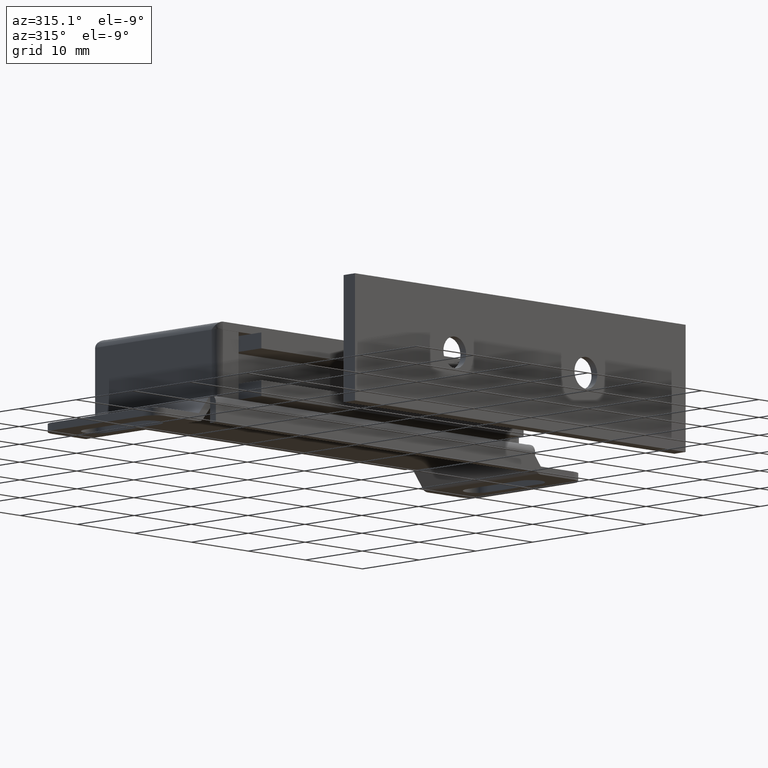
[diagram: clean part render]
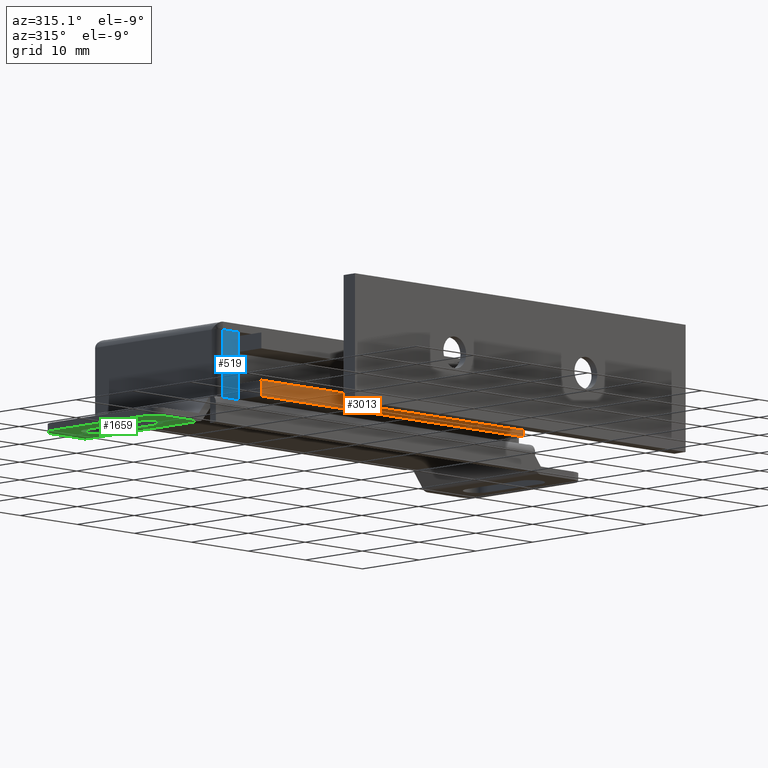
[diagram: same view with three faces highlighted in distinct colors, each labeled with its STEP entity id]
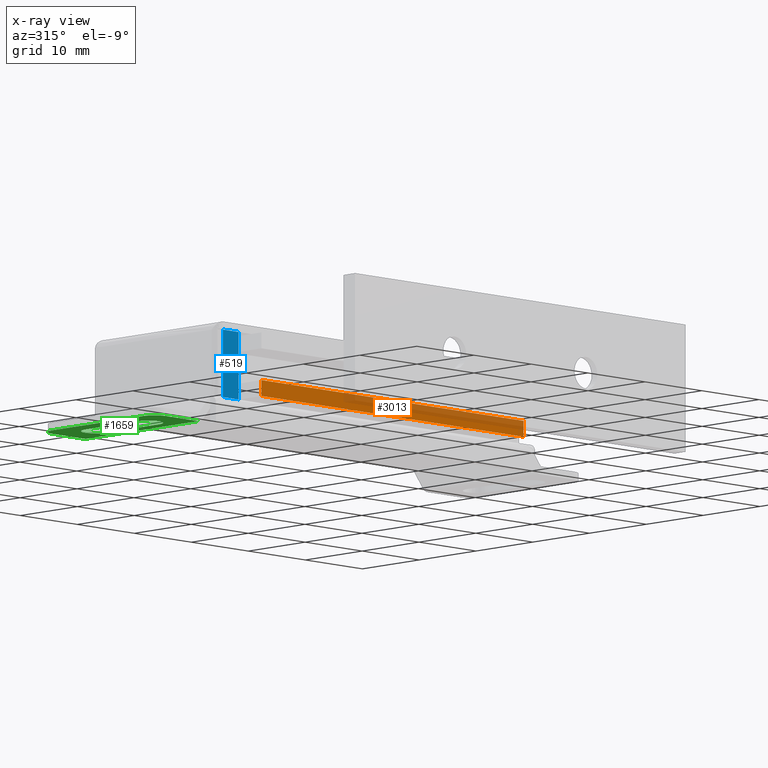
[diagram: x-ray of the same camera — body ghosted, the three highlighted faces saturated]
A machine part, auxiliary view with three faces highlighted in distinct colors.
The next image is the same camera in x-ray (body ghosted, the three faces saturated) — at least one of them is partly hidden behind the body in this view.
Their STEP definitions:

[orange] entity #3013 — the highlighted face is a freeform B-spline surface patch.
#2872=CARTESIAN_POINT('',(-22.999995999999999,-25.500000000000000,5.499999735626181));
#2873=VERTEX_POINT('',#2872);
#2879=CARTESIAN_POINT('',(23.000004000000001,-25.500000000000000,5.499999735626181));
#2880=VERTEX_POINT('',#2879);
#2881=CARTESIAN_POINT('',(23.000004000000001,-25.500000000000000,5.499999735626181));
#2882=CARTESIAN_POINT('',(-22.999995999999999,-25.500000000000000,5.499999735626181));
#2883=QUASI_UNIFORM_CURVE('',1,(#2881,#2882),.UNSPECIFIED.,.F.,.U.);
#2884=EDGE_CURVE('',#2880,#2873,#2883,.T.);
#2928=CARTESIAN_POINT('',(23.000004000000001,-25.500000000000000,3.499999735626220));
#2929=VERTEX_POINT('',#2928);
#2935=CARTESIAN_POINT('',(-22.999995999999999,-25.500000000000000,3.499999735626220));
#2936=VERTEX_POINT('',#2935);
#2937=CARTESIAN_POINT('',(23.000004000000001,-25.500000000000000,3.499999735626220));
#2938=CARTESIAN_POINT('',(-22.999995999999999,-25.500000000000000,3.499999735626220));
#2939=QUASI_UNIFORM_CURVE('',1,(#2937,#2938),.UNSPECIFIED.,.F.,.U.);
#2940=EDGE_CURVE('',#2929,#2936,#2939,.T.);
#2990=CARTESIAN_POINT('',(-22.999995999999999,-25.500000000000000,3.499999735626220));
#2991=CARTESIAN_POINT('',(-22.999995999999999,-25.500000000000000,5.499999735626181));
#2992=QUASI_UNIFORM_CURVE('',1,(#2990,#2991),.UNSPECIFIED.,.F.,.U.);
#2993=EDGE_CURVE('',#2936,#2873,#2992,.T.);
#2998=CARTESIAN_POINT('',(-25.297695910843078,-25.500000000000000,3.400099739502609));
#2999=CARTESIAN_POINT('',(-25.297695910843078,-25.500000000000000,5.599899785393973));
#3000=CARTESIAN_POINT('',(25.297705144659229,-25.500000000000000,3.400099739502609));
#3001=CARTESIAN_POINT('',(25.297705144659229,-25.500000000000000,5.599899785393973));
#3002=B_SPLINE_SURFACE_WITH_KNOTS('',1,1,((#2998,#3000),(#2999,#3001)),.UNSPECIFIED.,.F.,.F.,.U.,(2,2),(2,2),(0.0,2.199800045891363),(0.0,50.595401055502307),.UNSPECIFIED.);
#3003=ORIENTED_EDGE('',*,*,#2884,.T.);
#3004=ORIENTED_EDGE('',*,*,#2993,.F.);
#3005=ORIENTED_EDGE('',*,*,#2940,.F.);
#3006=CARTESIAN_POINT('',(23.000004000000001,-25.500000000000000,3.499999735626220));
#3007=CARTESIAN_POINT('',(23.000004000000001,-25.500000000000000,5.499999735626181));
#3008=QUASI_UNIFORM_CURVE('',1,(#3006,#3007),.UNSPECIFIED.,.F.,.U.);
#3009=EDGE_CURVE('',#2929,#2880,#3008,.T.);
#3010=ORIENTED_EDGE('',*,*,#3009,.T.);
#3011=EDGE_LOOP('',(#3003,#3004,#3005,#3010));
#3012=FACE_OUTER_BOUND('',#3011,.T.);
#3013=ADVANCED_FACE('',(#3012),#3002,.F.);

[blue] entity #519 — the highlighted face is a freeform B-spline surface patch.
#21=CARTESIAN_POINT('',(-25.750004000000001,-21.500000000000000,3.500000000000000));
#22=VERTEX_POINT('',#21);
#109=CARTESIAN_POINT('',(-23.0,-21.500000000000000,3.500000000000000));
#110=VERTEX_POINT('',#109);
#116=CARTESIAN_POINT('',(-25.750004000000001,-21.500000000000000,3.500000000000000));
#117=CARTESIAN_POINT('',(-23.0,-21.500000000000000,3.500000000000000));
#118=QUASI_UNIFORM_CURVE('',1,(#116,#117),.UNSPECIFIED.,.F.,.U.);
#119=EDGE_CURVE('',#22,#110,#118,.T.);
#492=CARTESIAN_POINT('',(-25.887366694469961,-21.500000000000000,12.414058684344750));
#493=CARTESIAN_POINT('',(-22.862637231769181,-21.500000000000000,12.414058684344750));
#494=CARTESIAN_POINT('',(-25.887366694469961,-21.500000000000000,3.075925087936122));
#495=CARTESIAN_POINT('',(-22.862637231769181,-21.500000000000000,3.075925087936122));
#496=B_SPLINE_SURFACE_WITH_KNOTS('',1,1,((#492,#494),(#493,#495)),.UNSPECIFIED.,.F.,.F.,.U.,(2,2),(2,2),(0.0,3.024729462700776),(0.0,9.338133596408625),.UNSPECIFIED.);
#497=CARTESIAN_POINT('',(-23.0,-21.500000000000000,11.989983999999980));
#498=VERTEX_POINT('',#497);
#499=CARTESIAN_POINT('',(-25.749995999999999,-21.500000000000000,11.989983999999980));
#500=VERTEX_POINT('',#499);
#501=CARTESIAN_POINT('',(-23.0,-21.500000000000000,11.989983999999980));
#502=CARTESIAN_POINT('',(-25.749995999999999,-21.500000000000000,11.989983999999980));
#503=QUASI_UNIFORM_CURVE('',1,(#501,#502),.UNSPECIFIED.,.F.,.U.);
#504=EDGE_CURVE('',#498,#500,#503,.T.);
#505=ORIENTED_EDGE('',*,*,#504,.T.);
#506=CARTESIAN_POINT('',(-25.749995999999999,-21.500000000000000,11.989983999999980));
#507=CARTESIAN_POINT('',(-25.750004000000001,-21.500000000000000,3.500000000000000));
#508=QUASI_UNIFORM_CURVE('',1,(#506,#507),.UNSPECIFIED.,.F.,.U.);
#509=EDGE_CURVE('',#500,#22,#508,.T.);
#510=ORIENTED_EDGE('',*,*,#509,.T.);
#511=ORIENTED_EDGE('',*,*,#119,.T.);
#512=CARTESIAN_POINT('',(-23.0,-21.500000000000000,3.500000000000000));
#513=CARTESIAN_POINT('',(-23.0,-21.500000000000000,11.989983999999980));
#514=QUASI_UNIFORM_CURVE('',1,(#512,#513),.UNSPECIFIED.,.F.,.U.);
#515=EDGE_CURVE('',#110,#498,#514,.T.);
#516=ORIENTED_EDGE('',*,*,#515,.T.);
#517=EDGE_LOOP('',(#505,#510,#511,#516));
#518=FACE_OUTER_BOUND('',#517,.T.);
#519=ADVANCED_FACE('',(#518),#496,.F.);

[green] entity #1659 — the highlighted face is a freeform B-spline surface patch.
#673=CARTESIAN_POINT('',(-29.999980047512199,-1.499999999999946,0.0));
#674=VERTEX_POINT('',#673);
#675=CARTESIAN_POINT('',(-35.750003999999997,-1.499999999999946,0.0));
#676=VERTEX_POINT('',#675);
#677=CARTESIAN_POINT('',(-29.999980047512199,-1.499999999999946,0.0));
#678=CARTESIAN_POINT('',(-35.750003999999997,-1.499999999999946,0.0));
#679=QUASI_UNIFORM_CURVE('',1,(#677,#678),.UNSPECIFIED.,.F.,.U.);
#680=EDGE_CURVE('',#674,#676,#679,.T.);
#872=CARTESIAN_POINT('',(-35.750003999999997,-21.500000000000000,0.0));
#873=VERTEX_POINT('',#872);
#879=CARTESIAN_POINT('',(-29.999980047512199,-21.500000000000000,0.0));
#880=VERTEX_POINT('',#879);
#881=CARTESIAN_POINT('',(-29.999980047512199,-21.500000000000000,0.0));
#882=CARTESIAN_POINT('',(-35.750003999999997,-21.500000000000000,0.0));
#883=QUASI_UNIFORM_CURVE('',1,(#881,#882),.UNSPECIFIED.,.F.,.U.);
#884=EDGE_CURVE('',#880,#873,#883,.T.);
#1551=CARTESIAN_POINT('',(-29.612866366106481,-22.498999961236120,0.0));
#1552=CARTESIAN_POINT('',(-38.137117889277562,-22.498999961236120,0.0));
#1553=CARTESIAN_POINT('',(-29.612866366106481,-0.500999502322022,0.0));
#1554=CARTESIAN_POINT('',(-38.137117889277562,-0.500999502322022,0.0));
#1555=B_SPLINE_SURFACE_WITH_KNOTS('',1,1,((#1551,#1553),(#1552,#1554)),.UNSPECIFIED.,.F.,.F.,.U.,(2,2),(2,2),(0.0,8.524251523171081),(0.0,21.998000458914099),.UNSPECIFIED.);
#1556=CARTESIAN_POINT('',(-37.750003999999997,-19.500000000000000,0.0));
#1557=VERTEX_POINT('',#1556);
#1558=CARTESIAN_POINT('',(-37.750003999999997,-3.499999999999950,0.0));
#1559=VERTEX_POINT('',#1558);
#1560=CARTESIAN_POINT('',(-37.750003999999997,-19.500000000000000,0.0));
#1561=CARTESIAN_POINT('',(-37.750003999999997,-3.499999999999950,0.0));
#1562=QUASI_UNIFORM_CURVE('',1,(#1560,#1561),.UNSPECIFIED.,.F.,.U.);
#1563=EDGE_CURVE('',#1557,#1559,#1562,.T.);
#1564=ORIENTED_EDGE('',*,*,#1563,.T.);
#1565=CARTESIAN_POINT('',(-37.750003999999997,-3.499999999999945,0.0));
#1566=CARTESIAN_POINT('',(-37.750004000000004,-1.499999999999944,0.0));
#1567=CARTESIAN_POINT('',(-35.750003999999997,-1.499999999999945,0.0));
#1575=(BOUNDED_CURVE()B_SPLINE_CURVE(2,(#1565,#1566,#1567),.UNSPECIFIED.,.F.,.U.)CURVE()GEOMETRIC_REPRESENTATION_ITEM()QUASI_UNIFORM_CURVE()RATIONAL_B_SPLINE_CURVE((1.0,0.707106781186548,1.0))REPRESENTATION_ITEM(''));
#1576=EDGE_CURVE('',#1559,#676,#1575,.T.);
#1577=ORIENTED_EDGE('',*,*,#1576,.T.);
#1578=ORIENTED_EDGE('',*,*,#680,.F.);
#1579=CARTESIAN_POINT('',(-29.999980047512199,-1.499999999999946,0.0));
#1580=CARTESIAN_POINT('',(-29.999980047512199,-21.500000000000000,0.0));
#1581=QUASI_UNIFORM_CURVE('',1,(#1579,#1580),.UNSPECIFIED.,.F.,.U.);
#1582=EDGE_CURVE('',#674,#880,#1581,.T.);
#1583=ORIENTED_EDGE('',*,*,#1582,.T.);
#1584=ORIENTED_EDGE('',*,*,#884,.T.);
#1585=CARTESIAN_POINT('',(-35.750003999999997,-21.500000000000000,0.0));
#1586=CARTESIAN_POINT('',(-37.750004000000004,-21.499999999999996,0.0));
#1587=CARTESIAN_POINT('',(-37.750003999999997,-19.500000000000000,0.0));
#1595=(BOUNDED_CURVE()B_SPLINE_CURVE(2,(#1585,#1586,#1587),.UNSPECIFIED.,.F.,.U.)CURVE()GEOMETRIC_REPRESENTATION_ITEM()QUASI_UNIFORM_CURVE()RATIONAL_B_SPLINE_CURVE((1.0,0.707106781186548,1.0))REPRESENTATION_ITEM(''));
#1596=EDGE_CURVE('',#873,#1557,#1595,.T.);
#1597=ORIENTED_EDGE('',*,*,#1596,.T.);
#1598=EDGE_LOOP('',(#1564,#1577,#1578,#1583,#1584,#1597));
#1599=FACE_OUTER_BOUND('',#1598,.T.);
#1600=CARTESIAN_POINT('',(-35.299998999999950,-16.200008000000000,0.0));
#1601=VERTEX_POINT('',#1600);
#1602=CARTESIAN_POINT('',(-35.299998999999950,-6.800000000000249,0.0));
#1603=VERTEX_POINT('',#1602);
#1604=CARTESIAN_POINT('',(-35.299998999999950,-16.200008000000000,0.0));
#1605=CARTESIAN_POINT('',(-35.299998999999950,-6.800000000000249,0.0));
#1606=QUASI_UNIFORM_CURVE('',1,(#1604,#1605),.UNSPECIFIED.,.F.,.U.);
#1607=EDGE_CURVE('',#1601,#1603,#1606,.T.);
#1608=ORIENTED_EDGE('',*,*,#1607,.F.);
#1609=CARTESIAN_POINT('',(-31.699992999999999,-16.200008000000050,0.0));
#1610=VERTEX_POINT('',#1609);
#1611=CARTESIAN_POINT('',(-35.299998999999950,-16.200008000000000,0.0));
#1612=CARTESIAN_POINT('',(-35.300033338025408,-16.347259071909630,0.0));
#1613=CARTESIAN_POINT('',(-35.267288010477678,-16.612309794359611,0.0));
#1614=CARTESIAN_POINT('',(-35.137682667825700,-16.974551956829281,0.0));
#1615=CARTESIAN_POINT('',(-34.955096194466933,-17.279180600784180,0.0));
#1616=CARTESIAN_POINT('',(-34.716598528272009,-17.542324069359420,0.0));
#1617=CARTESIAN_POINT('',(-34.443220331746829,-17.745064259985941,0.0));
#1618=CARTESIAN_POINT('',(-34.111137200061393,-17.907159658290489,0.0));
#1619=CARTESIAN_POINT('',(-33.751331887707948,-17.997290456038151,0.0));
#1620=CARTESIAN_POINT('',(-33.366729182755599,-18.006694355724999,0.0));
#1621=CARTESIAN_POINT('',(-32.943905872574653,-17.933412170245621,0.0));
#1622=CARTESIAN_POINT('',(-32.482838999801153,-17.722325542183601,0.0));
#1623=CARTESIAN_POINT('',(-32.100408777288870,-17.366957441234270,0.0));
#1624=CARTESIAN_POINT('',(-31.867300145769569,-16.988479517359341,0.0));
#1625=CARTESIAN_POINT('',(-31.732700962038709,-16.612309364884361,0.0));
#1626=CARTESIAN_POINT('',(-31.699960042238899,-16.347259650681519,0.0));
#1627=CARTESIAN_POINT('',(-31.699992999999999,-16.200008000000050,0.0));
#1628=B_SPLINE_CURVE_WITH_KNOTS('',3,(#1611,#1612,#1613,#1614,#1615,#1616,#1617,#1618,#1619,#1620,#1621,#1622,#1623,#1624,#1625,#1626,#1627),.UNSPECIFIED.,.F.,.U.,(4,1,1,1,1,1,1,1,1,1,1,1,1,1,4),(0.000000230249656,0.441757018223457,0.795221088012704,1.148672229158902,1.502120848615976,1.855557210919494,2.164840895627938,2.606648965652603,2.960027958052481,3.313474531993229,3.887814064769050,4.462171891571998,4.859802958630055,5.213258222657407,5.655018105291424),.UNSPECIFIED.);
#1629=EDGE_CURVE('',#1601,#1610,#1628,.T.);
#1630=ORIENTED_EDGE('',*,*,#1629,.T.);
#1631=CARTESIAN_POINT('',(-31.699992999999949,-6.800000000000249,0.0));
#1632=VERTEX_POINT('',#1631);
#1633=CARTESIAN_POINT('',(-31.699992999999949,-6.800000000000249,0.0));
#1634=CARTESIAN_POINT('',(-31.699992999999999,-16.200008000000050,0.0));
#1635=QUASI_UNIFORM_CURVE('',1,(#1633,#1634),.UNSPECIFIED.,.F.,.U.);
#1636=EDGE_CURVE('',#1632,#1610,#1635,.T.);
#1637=ORIENTED_EDGE('',*,*,#1636,.F.);
#1638=CARTESIAN_POINT('',(-31.699992999999949,-6.800000000000249,0.0));
#1639=CARTESIAN_POINT('',(-31.699984273645200,-6.682207259046682,0.0));
#1640=CARTESIAN_POINT('',(-31.726075711466351,-6.417131539992795,0.0));
#1641=CARTESIAN_POINT('',(-31.847078374548499,-6.050837527701435,0.0));
#1642=CARTESIAN_POINT('',(-32.044901756061421,-5.720834133840995,0.0));
#1643=CARTESIAN_POINT('',(-32.333041136868353,-5.402808899002141,0.0));
#1644=CARTESIAN_POINT('',(-32.745582861190726,-5.134345630692266,0.0));
#1645=CARTESIAN_POINT('',(-33.219067760970489,-5.003432807298963,0.0));
#1646=CARTESIAN_POINT('',(-33.677656530523791,-4.992188981916769,0.0));
#1647=CARTESIAN_POINT('',(-34.099260824527697,-5.081415062750159,0.0));
#1648=CARTESIAN_POINT('',(-34.496857775901823,-5.281575749403917,0.0));
#1649=CARTESIAN_POINT('',(-34.802950309990962,-5.539151487241401,0.0));
#1650=CARTESIAN_POINT('',(-35.039650862373954,-5.842469134157768,0.0));
#1651=CARTESIAN_POINT('',(-35.241139172263843,-6.255226475698382,0.0));
#1652=CARTESIAN_POINT('',(-35.300154846564112,-6.593820427565331,0.0));
#1653=CARTESIAN_POINT('',(-35.299998999999950,-6.800000000000249,0.0));
#1654=B_SPLINE_CURVE_WITH_KNOTS('',3,(#1638,#1639,#1640,#1641,#1642,#1643,#1644,#1645,#1646,#1647,#1648,#1649,#1650,#1651,#1652,#1653),.UNSPECIFIED.,.F.,.U.,(4,1,1,1,1,1,1,1,1,1,1,1,1,4),(0.000000230232408,0.353393109622344,0.795221088000318,1.148672229148471,1.502120848607529,2.076474990591583,2.606648965648398,2.960027958049386,3.446022043439047,3.887814064767661,4.285447076445207,4.638884963353863,5.036532805965207,5.655018105291385),.UNSPECIFIED.);
#1655=EDGE_CURVE('',#1632,#1603,#1654,.T.);
#1656=ORIENTED_EDGE('',*,*,#1655,.T.);
#1657=EDGE_LOOP('',(#1608,#1630,#1637,#1656));
#1658=FACE_BOUND('',#1657,.T.);
#1659=ADVANCED_FACE('',(#1599,#1658),#1555,.T.);